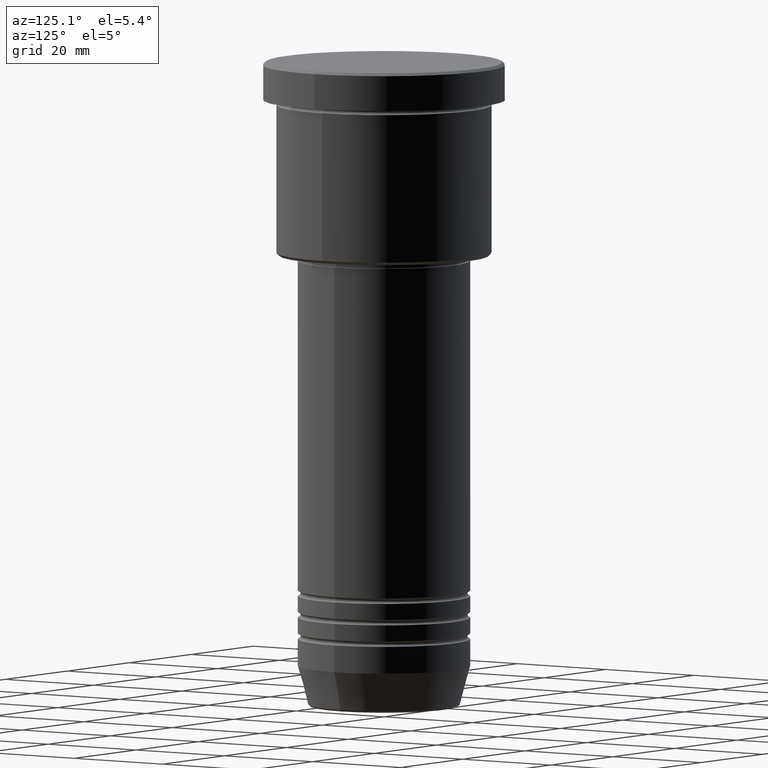
[diagram: clean part render]
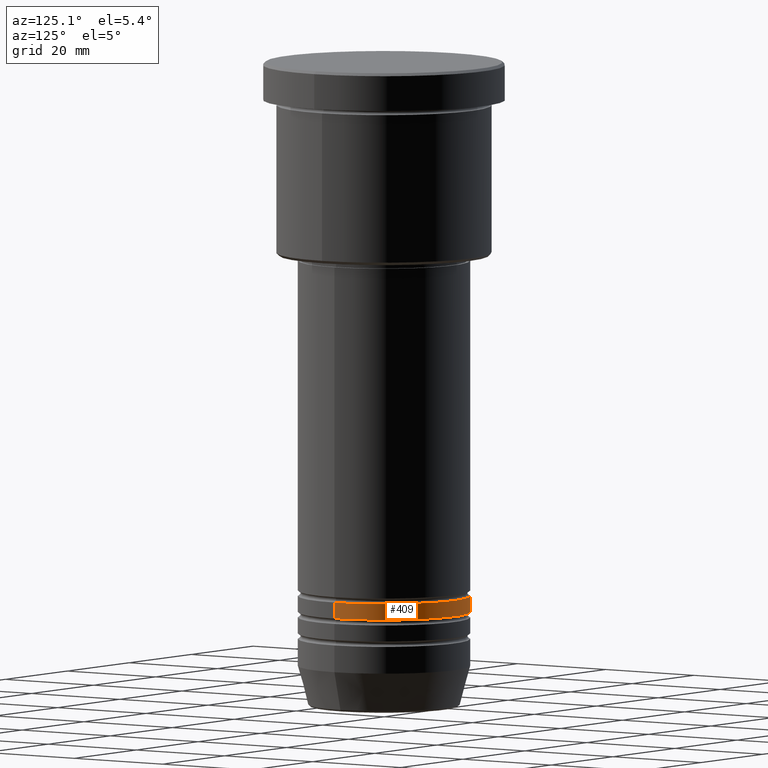
[diagram: same view with one face highlighted and labeled with its STEP entity id]
A machine part, auxiliary view. The second image highlights one B-rep face of the part: STEP entity #409.
In plain terms, the highlighted cylindrical surface (partial cylindrical patch) has radius 16 mm, axis along (-0, -0, 1).
Its self-contained STEP definition (entity closure, byte-faithful):
#46 = DIRECTION ( 'NONE',  ( -0.000000000000000000, -0.000000000000000000, 1.000000000000000000 ) ) ;
#68 = EDGE_LOOP ( 'NONE', ( #1181, #188, #639, #1159 ) ) ;
#119 = DIRECTION ( 'NONE',  ( -0.000000000000000000, -0.000000000000000000, 1.000000000000000000 ) ) ;
#130 = VERTEX_POINT ( 'NONE', #340 ) ;
#147 = LINE ( 'NONE', #412, #180 ) ;
#149 = DIRECTION ( 'NONE',  ( -0.000000000000000000, -0.000000000000000000, 1.000000000000000000 ) ) ;
#152 = VERTEX_POINT ( 'NONE', #898 ) ;
#153 = DIRECTION ( 'NONE',  ( 1.000000000000000000, 0.000000000000000000, 0.000000000000000000 ) ) ;
#168 = EDGE_CURVE ( 'NONE', #607, #152, #940, .T. ) ;
#180 = VECTOR ( 'NONE', #776, 1000.000000000000000 ) ;
#188 = ORIENTED_EDGE ( 'NONE', *, *, #507, .T. ) ;
#329 = CIRCLE ( 'NONE', #1102, 16.00000000000000000 ) ;
#340 = CARTESIAN_POINT ( 'NONE',  ( -16.00000000000000355, 1.959434878635765526E-15, -102.4999999999999858 ) ) ;
#392 = CYLINDRICAL_SURFACE ( 'NONE', #865, 16.00000000000000000 ) ;
#409 = ADVANCED_FACE ( 'NONE', ( #599 ), #392, .T. ) ;
#412 = CARTESIAN_POINT ( 'NONE',  ( -16.00000000000000000, 1.959434878635765131E-15, 0.000000000000000000 ) ) ;
#488 = CARTESIAN_POINT ( 'NONE',  ( 0.000000000000000000, 0.000000000000000000, 0.000000000000000000 ) ) ;
#507 = EDGE_CURVE ( 'NONE', #130, #585, #147, .T. ) ;
#585 = VERTEX_POINT ( 'NONE', #674 ) ;
#599 = FACE_OUTER_BOUND ( 'NONE', #68, .T. ) ;
#607 = VERTEX_POINT ( 'NONE', #809 ) ;
#639 = ORIENTED_EDGE ( 'NONE', *, *, #859, .F. ) ;
#674 = CARTESIAN_POINT ( 'NONE',  ( -16.00000000000000000, 1.959434878635765131E-15, -99.49999999999997158 ) ) ;
#776 = DIRECTION ( 'NONE',  ( -0.000000000000000000, -0.000000000000000000, 1.000000000000000000 ) ) ;
#809 = CARTESIAN_POINT ( 'NONE',  ( 16.00000000000000355, 0.000000000000000000, -102.4999999999999858 ) ) ;
#847 = DIRECTION ( 'NONE',  ( 1.000000000000000000, 0.000000000000000000, 0.000000000000000000 ) ) ;
#859 = EDGE_CURVE ( 'NONE', #152, #585, #329, .T. ) ;
#865 = AXIS2_PLACEMENT_3D ( 'NONE', #488, #46, #847 ) ;
#872 = CARTESIAN_POINT ( 'NONE',  ( 0.000000000000000000, 0.000000000000000000, -102.4999999999999858 ) ) ;
#880 = EDGE_CURVE ( 'NONE', #607, #130, #1042, .T. ) ;
#898 = CARTESIAN_POINT ( 'NONE',  ( 16.00000000000000000, 0.000000000000000000, -99.49999999999997158 ) ) ;
#900 = VECTOR ( 'NONE', #119, 1000.000000000000000 ) ;
#940 = LINE ( 'NONE', #1036, #900 ) ;
#974 = CARTESIAN_POINT ( 'NONE',  ( 0.000000000000000000, 0.000000000000000000, -99.49999999999997158 ) ) ;
#986 = DIRECTION ( 'NONE',  ( -0.000000000000000000, -0.000000000000000000, 1.000000000000000000 ) ) ;
#1036 = CARTESIAN_POINT ( 'NONE',  ( 16.00000000000000000, 0.000000000000000000, 0.000000000000000000 ) ) ;
#1042 = CIRCLE ( 'NONE', #1162, 16.00000000000000355 ) ;
#1102 = AXIS2_PLACEMENT_3D ( 'NONE', #974, #149, #153 ) ;
#1159 = ORIENTED_EDGE ( 'NONE', *, *, #168, .F. ) ;
#1162 = AXIS2_PLACEMENT_3D ( 'NONE', #872, #986, #1183 ) ;
#1181 = ORIENTED_EDGE ( 'NONE', *, *, #880, .T. ) ;
#1183 = DIRECTION ( 'NONE',  ( 1.000000000000000000, 0.000000000000000000, 0.000000000000000000 ) ) ;